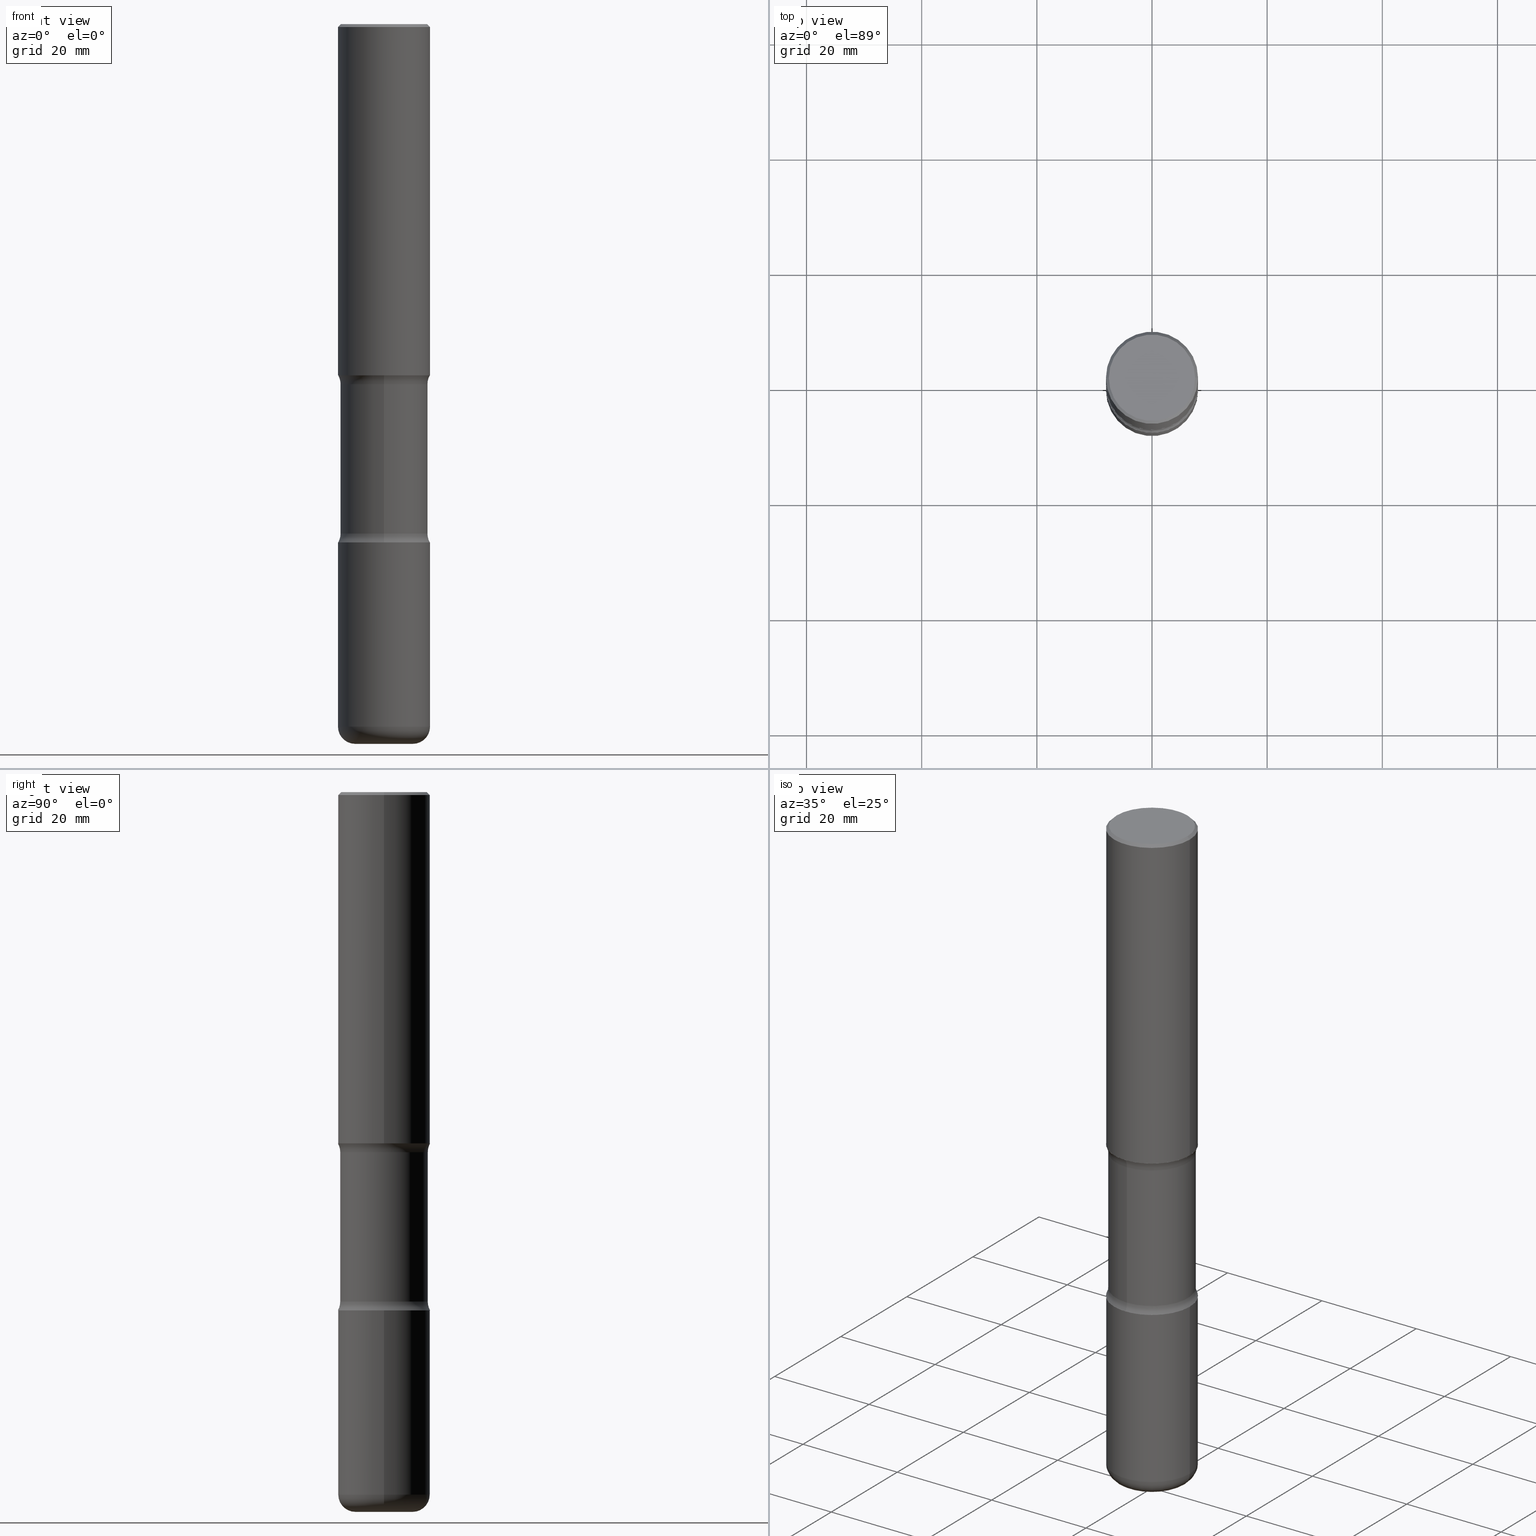
[diagram: canonical four-view strip — front | top / right | iso, engineering-drawing reading convention]
A machine part, canonical four-view strip (front | top / right | iso — engineering-drawing reading convention). The complete STEP part file that produces these views, byte-faithful:
ISO-10303-21;
HEADER;
FILE_DESCRIPTION (( 'STEP AP203' ),
    '1' );
FILE_NAME ('47732.STEP',
    '2024-03-02T08:06:10',
    ( '' ),
    ( '' ),
    'SwSTEP 2.0',
    'SolidWorks 2023',
    '' );
FILE_SCHEMA (( 'CONFIG_CONTROL_DESIGN' ));
ENDSEC;

DATA;
#1 = CONICAL_SURFACE ( 'NONE', #309, 0.3149499999999998967, 0.7853981633974460586 ) ;
#2 = ADVANCED_FACE ( 'NONE', ( #321 ), #33, .F. ) ;
#3 = ORGANIZATION ( 'UNSPECIFIED', 'UNSPECIFIED', '' ) ;
#4 = DIRECTION ( 'NONE',  ( -2.445468806185136597E-29, 3.491481338843145583E-15, 1.000000000000000000 ) ) ;
#5 = CARTESIAN_POINT ( 'NONE',  ( 4.890937612370289799E-31, -6.982962677686315028E-17, -0.02000000000000006981 ) ) ;
#6 = DIRECTION ( 'NONE',  ( 2.514961011121466101E-29, -3.391964546123647133E-15, -1.000000000000000000 ) ) ;
#7 = AXIS2_PLACEMENT_3D ( 'NONE', #23, #197, #163 ) ;
#8 = PLANE ( 'NONE',  #161 ) ;
#9 = AXIS2_PLACEMENT_3D ( 'NONE', #487, #443, #225 ) ;
#10 = ORIENTED_EDGE ( 'NONE', *, *, #477, .T. ) ;
#11 = EDGE_CURVE ( 'NONE', #453, #43, #58, .T. ) ;
#12 = FACE_OUTER_BOUND ( 'NONE', #85, .T. ) ;
#13 = ORIENTED_EDGE ( 'NONE', *, *, #358, .T. ) ;
#14 = EDGE_CURVE ( 'NONE', #118, #29, #360, .T. ) ;
#15 = AXIS2_PLACEMENT_3D ( 'NONE', #425, #517, #545 ) ;
#16 = CARTESIAN_POINT ( 'NONE',  ( 8.512269027981096619E-29, -1.216533539121887276E-14, -3.482559259964996379 ) ) ;
#17 = ORIENTED_EDGE ( 'NONE', *, *, #526, .T. ) ;
#18 = DIRECTION ( 'NONE',  ( 1.000000000000000000, -6.982962677686267499E-15, 4.876176775795936353E-29 ) ) ;
#19 = CARTESIAN_POINT ( 'NONE',  ( -0.3149499999999998967, 2.129454468560425784E-15, -0.02000000000000006981 ) ) ;
#20 = ORIENTED_EDGE ( 'NONE', *, *, #264, .F. ) ;
#21 = LOCAL_TIME ( 3, 6, 10.00000000000000000, #124 ) ;
#22 = EDGE_CURVE ( 'NONE', #176, #453, #101, .T. ) ;
#23 = CARTESIAN_POINT ( 'NONE',  ( 5.873037884934225470E-29, -8.385141583365698841E-15, -2.401600000000000623 ) ) ;
#24 =( NAMED_UNIT ( * ) SI_UNIT ( $, .STERADIAN. ) SOLID_ANGLE_UNIT ( ) );
#25 = DIRECTION ( 'NONE',  ( -2.445468806185136597E-29, 3.491481338843145583E-15, 1.000000000000000000 ) ) ;
#26 = CALENDAR_DATE ( 2024, 2, 3 ) ;
#27 = VERTEX_POINT ( 'NONE', #153 ) ;
#28 = DIRECTION ( 'NONE',  ( -2.445468806185136877E-29, 3.491481338843145188E-15, 1.000000000000000000 ) ) ;
#29 = VERTEX_POINT ( 'NONE', #444 ) ;
#30 = EDGE_CURVE ( 'NONE', #550, #204, #390, .T. ) ;
#31 = FACE_OUTER_BOUND ( 'NONE', #538, .T. ) ;
#32 = APPROVAL_DATE_TIME ( #288, #328 ) ;
#33 = TOROIDAL_SURFACE ( 'NONE', #402, 0.4242000000000001325, 0.1250000000000000555 ) ;
#34 = EDGE_LOOP ( 'NONE', ( #81, #556 ) ) ;
#35 = AXIS2_PLACEMENT_3D ( 'NONE', #57, #410, #189 ) ;
#36 = FACE_OUTER_BOUND ( 'NONE', #408, .T. ) ;
#37 = APPLICATION_PROTOCOL_DEFINITION ( 'international standard', 'config_control_design', 1994, #275 ) ;
#38 = ORIENTED_EDGE ( 'NONE', *, *, #323, .F. ) ;
#39 = CYLINDRICAL_SURFACE ( 'NONE', #478, 0.2992000000000000215 ) ;
#40 = PERSON_AND_ORGANIZATION ( #356, #3 ) ;
#41 = ORIENTED_EDGE ( 'NONE', *, *, #98, .T. ) ;
#42 = DIRECTION ( 'NONE',  ( 2.514961011121466661E-29, -3.391964546123647133E-15, -1.000000000000000000 ) ) ;
#43 = VERTEX_POINT ( 'NONE', #19 ) ;
#44 = ORIENTED_EDGE ( 'NONE', *, *, #534, .F. ) ;
#45 = CIRCLE ( 'NONE', #7, 0.3149500000000001743 ) ;
#46 = CIRCLE ( 'NONE', #548, 0.1181000000000000660 ) ;
#47 = DIRECTION ( 'NONE',  ( 1.000000000000000000, -6.982962677686263555E-15, 0.000000000000000000 ) ) ;
#48 = DIRECTION ( 'NONE',  ( 1.000000000000000000, -6.982962677686265922E-15, 0.000000000000000000 ) ) ;
#49 = APPLICATION_CONTEXT ( 'configuration controlled 3d designs of mechanical parts and assemblies' ) ;
#50 = LINE ( 'NONE', #216, #193 ) ;
#51 = CYLINDRICAL_SURFACE ( 'NONE', #265, 0.3149500000000000077 ) ;
#52 = AXIS2_PLACEMENT_3D ( 'NONE', #273, #107, #374 ) ;
#53 = DIRECTION ( 'NONE',  ( 2.438088387897960049E-29, -3.491481338843145188E-15, -1.000000000000000000 ) ) ;
#54 = LOCAL_TIME ( 3, 6, 10.00000000000000000, #509 ) ;
#55 = EDGE_CURVE ( 'NONE', #68, #336, #330, .T. ) ;
#56 = DIRECTION ( 'NONE',  ( 2.514961011121466661E-29, -3.391964546123646738E-15, -1.000000000000000000 ) ) ;
#57 = CARTESIAN_POINT ( 'NONE',  ( 1.174607576986844421E-28, -1.677028316673139137E-14, -4.803199999999998582 ) ) ;
#58 = CIRCLE ( 'NONE', #52, 0.3149499999999998967 ) ;
#59 = ORIENTED_EDGE ( 'NONE', *, *, #14, .F. ) ;
#60 = AXIS2_PLACEMENT_3D ( 'NONE', #504, #462, #242 ) ;
#61 = DIRECTION ( 'NONE',  ( -2.445468806185136597E-29, 3.491481338843145583E-15, 1.000000000000000000 ) ) ;
#62 = CARTESIAN_POINT ( 'NONE',  ( 5.926195507050082324E-29, -8.733809143388656122E-15, -2.462340740035005471 ) ) ;
#63 = EDGE_CURVE ( 'NONE', #417, #336, #368, .T. ) ;
#64 = CLOSED_SHELL ( 'NONE', ( #134, #519, #127, #2, #215, #388, #224, #92 ) ) ;
#65 = APPROVAL_DATE_TIME ( #279, #218 ) ;
#66 = CIRCLE ( 'NONE', #331, 0.3149500000000001743 ) ;
#67 = DIRECTION ( 'NONE',  ( 2.445468806185136597E-29, -3.491481338843145583E-15, -1.000000000000000000 ) ) ;
#68 = VERTEX_POINT ( 'NONE', #276 ) ;
#69 = EDGE_CURVE ( 'NONE', #463, #27, #546, .T. ) ;
#70 = CARTESIAN_POINT ( 'NONE',  ( 2.059624841783563274E-15, 0.2949499999999998789, -1.023409652156634744E-15 ) ) ;
#71 = EDGE_LOOP ( 'NONE', ( #119, #351, #202, #313 ) ) ;
#72 = DIRECTION ( 'NONE',  ( 1.000000000000000000, -6.982962677686267499E-15, 4.876176775795936353E-29 ) ) ;
#73 = ORIENTED_EDGE ( 'NONE', *, *, #98, .F. ) ;
#74 = FACE_OUTER_BOUND ( 'NONE', #248, .T. ) ;
#75 = SHAPE_DEFINITION_REPRESENTATION ( #307, #246 ) ;
#76 = ORIENTED_EDGE ( 'NONE', *, *, #113, .T. ) ;
#77 = CARTESIAN_POINT ( 'NONE',  ( 0.3149500000000003963, -2.199284095337292632E-15, 1.535751875536932092E-29 ) ) ;
#78 = AXIS2_PLACEMENT_3D ( 'NONE', #205, #67, #167 ) ;
#79 = ORIENTED_EDGE ( 'NONE', *, *, #371, .F. ) ;
#80 = DIRECTION ( 'NONE',  ( -2.445468806185136597E-29, 3.491481338843145583E-15, 1.000000000000000000 ) ) ;
#81 = ORIENTED_EDGE ( 'NONE', *, *, #286, .F. ) ;
#82 = PERSON_AND_ORGANIZATION ( #356, #3 ) ;
#83 = ORIENTED_EDGE ( 'NONE', *, *, #526, .F. ) ;
#84 = CARTESIAN_POINT ( 'NONE',  ( 2.962172767874574494E-15, 0.4241999999999914173, -2.462340740035007247 ) ) ;
#85 = EDGE_LOOP ( 'NONE', ( #465, #536 ) ) ;
#86 = CC_DESIGN_PERSON_AND_ORGANIZATION_ASSIGNMENT ( #290, #384, ( #415 ) ) ;
#87 = VERTEX_POINT ( 'NONE', #451 ) ;
#88 = DIRECTION ( 'NONE',  ( 2.514961011121466661E-29, -3.391964546123646738E-15, -1.000000000000000000 ) ) ;
#89 = VERTEX_POINT ( 'NONE', #488 ) ;
#90 = CIRCLE ( 'NONE', #203, 0.2992000000000000215 ) ;
#91 = DIRECTION ( 'NONE',  ( 6.860497997771530774E-15, 1.000000000000000000, 0.000000000000000000 ) ) ;
#92 = ADVANCED_FACE ( 'NONE', ( #249 ), #502, .T. ) ;
#93 = ORIENTED_EDGE ( 'NONE', *, *, #106, .F. ) ;
#94 = DIRECTION ( 'NONE',  ( 1.000000000000000000, -6.860497997771530774E-15, 4.842017608840796657E-29 ) ) ;
#95 = CIRCLE ( 'NONE', #411, 0.1968500000000004135 ) ;
#96 = DIRECTION ( 'NONE',  ( 6.982962677686265922E-15, 1.000000000000000000, -3.391964546123646344E-15 ) ) ;
#97 = LOCAL_TIME ( 3, 6, 10.00000000000000000, #232 ) ;
#98 = EDGE_CURVE ( 'NONE', #417, #204, #522, .T. ) ;
#99 = EDGE_LOOP ( 'NONE', ( #20, #122, #41, #172 ) ) ;
#100 = CARTESIAN_POINT ( 'NONE',  ( -0.3149500000000002853, -1.233297015105071824E-14, -3.543300000000000782 ) ) ;
#101 = LINE ( 'NONE', #228, #271 ) ;
#102 = DIRECTION ( 'NONE',  ( 6.982962677686265922E-15, 1.000000000000000000, -3.391964546123646344E-15 ) ) ;
#103 = CIRCLE ( 'NONE', #380, 0.2949499999999998789 ) ;
#104 = AXIS2_PLACEMENT_3D ( 'NONE', #185, #145, #102 ) ;
#105 = FACE_OUTER_BOUND ( 'NONE', #300, .T. ) ;
#106 = EDGE_CURVE ( 'NONE', #29, #68, #515, .T. ) ;
#107 = DIRECTION ( 'NONE',  ( -2.445468806185136597E-29, 3.491481338843145583E-15, 1.000000000000000000 ) ) ;
#108 = ORIENTED_EDGE ( 'NONE', *, *, #244, .F. ) ;
#109 = CALENDAR_DATE ( 2024, 2, 3 ) ;
#110 = DIRECTION ( 'NONE',  ( 6.860497997771530774E-15, 1.000000000000000000, 0.000000000000000000 ) ) ;
#111 = VERTEX_POINT ( 'NONE', #381 ) ;
#112 = TOROIDAL_SURFACE ( 'NONE', #159, 0.4242000000000001325, 0.1250000000000000555 ) ;
#113 = EDGE_CURVE ( 'NONE', #510, #176, #103, .T. ) ;
#114 = LINE ( 'NONE', #77, #539 ) ;
#115 = CIRCLE ( 'NONE', #354, 0.2949499999999998789 ) ;
#116 = DIRECTION ( 'NONE',  ( -2.445468806185136597E-29, 3.491481338843145583E-15, 1.000000000000000000 ) ) ;
#117 = PERSON_AND_ORGANIZATION ( #356, #3 ) ;
#118 = VERTEX_POINT ( 'NONE', #332 ) ;
#119 = ORIENTED_EDGE ( 'NONE', *, *, #426, .F. ) ;
#120 = DIRECTION ( 'NONE',  ( -6.982962677686267499E-15, -1.000000000000000000, 0.000000000000000000 ) ) ;
#121 = APPROVAL_DATE_TIME ( #544, #278 ) ;
#122 = ORIENTED_EDGE ( 'NONE', *, *, #358, .F. ) ;
#123 = DIRECTION ( 'NONE',  ( 1.000000000000000000, -6.982962677686273021E-15, 0.000000000000000000 ) ) ;
#124 = COORDINATED_UNIVERSAL_TIME_OFFSET ( 5, 0, .BEHIND. ) ;
#125 = ORIENTED_EDGE ( 'NONE', *, *, #106, .T. ) ;
#126 = CC_DESIGN_APPROVAL ( #278, ( #415 ) ) ;
#127 = ADVANCED_FACE ( 'NONE', ( #158 ), #112, .F. ) ;
#128 = CARTESIAN_POINT ( 'NONE',  ( -2.910223250654599532E-15, -0.4242000000000124005, -3.482559259964994158 ) ) ;
#129 = CC_DESIGN_SECURITY_CLASSIFICATION ( #346, ( #516 ) ) ;
#130 = ORIENTED_EDGE ( 'NONE', *, *, #11, .F. ) ;
#131 = EDGE_LOOP ( 'NONE', ( #471, #164 ) ) ;
#132 = FACE_OUTER_BOUND ( 'NONE', #166, .T. ) ;
#133 = EDGE_LOOP ( 'NONE', ( #143, #392 ) ) ;
#134 = ADVANCED_FACE ( 'NONE', ( #284 ), #39, .T. ) ;
#135 = AXIS2_PLACEMENT_3D ( 'NONE', #238, #416, #340 ) ;
#136 = FACE_OUTER_BOUND ( 'NONE', #382, .T. ) ;
#137 = DIRECTION ( 'NONE',  ( -2.445468806185136877E-29, 3.491481338843145188E-15, 1.000000000000000000 ) ) ;
#138 = MANIFOLD_SOLID_BREP ( 'Body-Move/Copy2[2]', #530 ) ;
#139 = DIRECTION ( 'NONE',  ( 1.000000000000000000, -6.982962677686266711E-15, 4.876176775795936353E-29 ) ) ;
#140 = DIRECTION ( 'NONE',  ( 6.982962677686265922E-15, 1.000000000000000000, -3.469564049740288825E-15 ) ) ;
#141 = AXIS2_PLACEMENT_3D ( 'NONE', #156, #456, #549 ) ;
#142 = AXIS2_PLACEMENT_3D ( 'NONE', #389, #219, #395 ) ;
#143 = ORIENTED_EDGE ( 'NONE', *, *, #14, .T. ) ;
#144 = PERSON_AND_ORGANIZATION ( #356, #3 ) ;
#145 = DIRECTION ( 'NONE',  ( 2.514961011121466661E-29, -3.391964546123646738E-15, -1.000000000000000000 ) ) ;
#146 = DIRECTION ( 'NONE',  ( -2.445468806185136597E-29, 3.491481338843145583E-15, 1.000000000000000000 ) ) ;
#147 = VERTEX_POINT ( 'NONE', #472 ) ;
#148 = LINE ( 'NONE', #316, #319 ) ;
#149 = EDGE_CURVE ( 'NONE', #87, #147, #45, .T. ) ;
#150 = AXIS2_PLACEMENT_3D ( 'NONE', #344, #6, #521 ) ;
#151 = CIRCLE ( 'NONE', #361, 0.3149500000000003963 ) ;
#152 = PERSON_AND_ORGANIZATION_ROLE ( 'design_supplier' ) ;
#153 = CARTESIAN_POINT ( 'NONE',  ( 0.3149500000000002853, -1.457064992326021168E-14, -3.543300000000000782 ) ) ;
#154 = PERSON_AND_ORGANIZATION ( #356, #3 ) ;
#155 = ADVANCED_FACE ( 'NONE', ( #378 ), #375, .T. ) ;
#156 = CARTESIAN_POINT ( 'NONE',  ( 5.018805843069069152E-28, 3.745488787305896227E-14, -4.921299999999999564 ) ) ;
#157 = CARTESIAN_POINT ( 'NONE',  ( -0.1968500000000004135, -1.537157979138763122E-14, -4.803199999999998582 ) ) ;
#158 = FACE_OUTER_BOUND ( 'NONE', #192, .T. ) ;
#159 = AXIS2_PLACEMENT_3D ( 'NONE', #464, #210, #297 ) ;
#160 = EDGE_LOOP ( 'NONE', ( #83, #431, #343, #44 ) ) ;
#161 = AXIS2_PLACEMENT_3D ( 'NONE', #475, #53, #182 ) ;
#162 = ORIENTED_EDGE ( 'NONE', *, *, #305, .T. ) ;
#163 = DIRECTION ( 'NONE',  ( 1.000000000000000000, -6.982962677686265922E-15, 0.000000000000000000 ) ) ;
#164 = ORIENTED_EDGE ( 'NONE', *, *, #30, .F. ) ;
#165 = PERSON_AND_ORGANIZATION_ROLE ( 'design_owner' ) ;
#166 = EDGE_LOOP ( 'NONE', ( #379, #532, #130, #474 ) ) ;
#167 = DIRECTION ( 'NONE',  ( -1.000000000000000000, 6.982962677686265922E-15, 0.000000000000000000 ) ) ;
#168 = CALENDAR_DATE ( 2024, 2, 3 ) ;
#169 = ADVANCED_FACE ( 'NONE', ( #74 ), #498, .F. ) ;
#170 = DIRECTION ( 'NONE',  ( -2.445468806185136597E-29, 3.491481338843145583E-15, 1.000000000000000000 ) ) ;
#171 = FACE_OUTER_BOUND ( 'NONE', #131, .T. ) ;
#172 = ORIENTED_EDGE ( 'NONE', *, *, #454, .T. ) ;
#173 = EDGE_LOOP ( 'NONE', ( #13, #162, #503, #420 ) ) ;
#174 = TOROIDAL_SURFACE ( 'NONE', #421, 0.1968500000000004135, 0.1181000000000000522 ) ;
#175 = CARTESIAN_POINT ( 'NONE',  ( 5.946459227533120264E-29, -8.704790342317601483E-15, -2.462340740035005471 ) ) ;
#176 = VERTEX_POINT ( 'NONE', #559 ) ;
#177 = DIRECTION ( 'NONE',  ( 1.000000000000000000, -6.982962677686273021E-15, 0.000000000000000000 ) ) ;
#178 = ADVANCED_FACE ( 'NONE', ( #31 ), #329, .T. ) ;
#179 = CARTESIAN_POINT ( 'NONE',  ( -2.052661000933121010E-15, -0.2992000000000170634, -4.921299999999999564 ) ) ;
#180 = AXIS2_PLACEMENT_3D ( 'NONE', #84, #200, #120 ) ;
#181 = AXIS2_PLACEMENT_3D ( 'NONE', #320, #466, #520 ) ;
#182 = DIRECTION ( 'NONE',  ( -1.000000000000000000, 6.982962677686265922E-15, -4.876176775795935793E-29 ) ) ;
#183 = CARTESIAN_POINT ( 'NONE',  ( 8.516490035935592115E-29, -1.215929066758317818E-14, -3.482559259964995935 ) ) ;
#184 = EDGE_CURVE ( 'NONE', #87, #43, #337, .T. ) ;
#185 = CARTESIAN_POINT ( 'NONE',  ( 8.516490035935592115E-29, -1.215929066758317818E-14, -3.482559259964995935 ) ) ;
#186 = AXIS2_PLACEMENT_3D ( 'NONE', #324, #234, #190 ) ;
#187 = AXIS2_PLACEMENT_3D ( 'NONE', #217, #365, #489 ) ;
#188 = DIRECTION ( 'NONE',  ( 6.982962677686265922E-15, 1.000000000000000000, -3.652203200085913145E-15 ) ) ;
#189 = DIRECTION ( 'NONE',  ( 1.000000000000000000, -6.982962677686265133E-15, 0.000000000000000000 ) ) ;
#190 = DIRECTION ( 'NONE',  ( 6.982962677686265922E-15, 1.000000000000000000, -3.469564049740288825E-15 ) ) ;
#191 = ADVANCED_FACE ( 'NONE', ( #36 ), #302, .T. ) ;
#192 = EDGE_LOOP ( 'NONE', ( #461, #339, #289, #73 ) ) ;
#193 = VECTOR ( 'NONE', #137, 39.37007874015748143 ) ;
#194 = DIRECTION ( 'NONE',  ( 6.982962677686265922E-15, 1.000000000000000000, -3.391964546123646738E-15 ) ) ;
#195 = LOCAL_TIME ( 3, 6, 10.00000000000000000, #541 ) ;
#196 = EDGE_CURVE ( 'NONE', #89, #547, #233, .T. ) ;
#197 = DIRECTION ( 'NONE',  ( -2.445468806185136597E-29, 3.491481338843145583E-15, 1.000000000000000000 ) ) ;
#198 = PERSON_AND_ORGANIZATION_ROLE ( 'creator' ) ;
#199 = ORIENTED_EDGE ( 'NONE', *, *, #511, .T. ) ;
#200 = DIRECTION ( 'NONE',  ( -1.000000000000000000, 6.982962677686265922E-15, -4.883557194083112340E-29 ) ) ;
#201 = VECTOR ( 'NONE', #362, 39.37007874015748143 ) ;
#202 = ORIENTED_EDGE ( 'NONE', *, *, #196, .T. ) ;
#203 = AXIS2_PLACEMENT_3D ( 'NONE', #16, #229, #495 ) ;
#204 = VERTEX_POINT ( 'NONE', #512 ) ;
#205 = CARTESIAN_POINT ( 'NONE',  ( 4.890937612370289799E-31, -6.982962677686315028E-17, -0.02000000000000006981 ) ) ;
#206 = EDGE_CURVE ( 'NONE', #208, #89, #372, .T. ) ;
#207 = APPROVAL_STATUS ( 'not_yet_approved' ) ;
#208 = VERTEX_POINT ( 'NONE', #386 ) ;
#209 = CYLINDRICAL_SURFACE ( 'NONE', #281, 0.3149500000000003963 ) ;
#210 = DIRECTION ( 'NONE',  ( 2.514961011121466661E-29, -3.391964546123646738E-15, -1.000000000000000000 ) ) ;
#211 = APPROVAL_ROLE ( '' ) ;
#212 = ORIENTED_EDGE ( 'NONE', *, *, #237, .T. ) ;
#213 = CARTESIAN_POINT ( 'NONE',  ( 1.174607576986844421E-28, -1.677028316673139137E-14, -4.803199999999998582 ) ) ;
#214 = ORIENTED_EDGE ( 'NONE', *, *, #196, .F. ) ;
#215 = ADVANCED_FACE ( 'NONE', ( #171 ), #469, .F. ) ;
#216 = CARTESIAN_POINT ( 'NONE',  ( -0.3149500000000003963, 2.237854346276438351E-15, -1.549218606675784638E-29 ) ) ;
#217 = CARTESIAN_POINT ( 'NONE',  ( 4.372705008681123089E-29, -1.851821897664530113E-14, -3.543300000000000338 ) ) ;
#218 = APPROVAL ( #513, 'UNSPECIFIED' ) ;
#219 = DIRECTION ( 'NONE',  ( -2.438088387897960049E-29, 3.491481338843145188E-15, 1.000000000000000000 ) ) ;
#220 = DIRECTION ( 'NONE',  ( 2.514961011121466661E-29, -3.391964546123646738E-15, -1.000000000000000000 ) ) ;
#221 = AXIS2_PLACEMENT_3D ( 'NONE', #183, #436, #96 ) ;
#222 = APPROVAL_PERSON_ORGANIZATION ( #154, #278, #552 ) ;
#223 = DIRECTION ( 'NONE',  ( 1.000000000000000000, -6.982962677686265133E-15, 4.883557194083112901E-29 ) ) ;
#224 = ADVANCED_FACE ( 'NONE', ( #481 ), #467, .F. ) ;
#225 = DIRECTION ( 'NONE',  ( -6.982962677686267499E-15, -1.000000000000000000, 0.000000000000000000 ) ) ;
#226 = TOROIDAL_SURFACE ( 'NONE', #412, 0.1968500000000004135, 0.1181000000000000522 ) ;
#227 = ADVANCED_FACE ( 'NONE', ( #132 ), #51, .T. ) ;
#228 = CARTESIAN_POINT ( 'NONE',  ( 0.3149499999999998967, -2.230543471175006266E-15, -0.02000000000000006981 ) ) ;
#229 = DIRECTION ( 'NONE',  ( 2.514961011121466661E-29, -3.391964546123646738E-15, -1.000000000000000000 ) ) ;
#230 = FACE_OUTER_BOUND ( 'NONE', #133, .T. ) ;
#231 = PRODUCT ( '47732', '47732', '', ( #335 ) ) ;
#232 = COORDINATED_UNIVERSAL_TIME_OFFSET ( 5, 0, .BEHIND. ) ;
#233 = CIRCLE ( 'NONE', #135, 0.1181000000000000660 ) ;
#234 = DIRECTION ( 'NONE',  ( 2.514961011121466661E-29, -3.391964546123646738E-15, -1.000000000000000000 ) ) ;
#235 = AXIS2_PLACEMENT_3D ( 'NONE', #350, #94, #91 ) ;
#236 = PERSON_AND_ORGANIZATION ( #356, #3 ) ;
#237 = EDGE_CURVE ( 'NONE', #111, #463, #50, .T. ) ;
#238 = CARTESIAN_POINT ( 'NONE',  ( 0.1968500000000004135, -1.814487936983393456E-14, -4.803199999999998582 ) ) ;
#239 = DIRECTION ( 'NONE',  ( 2.438088387897960049E-29, -3.491481338843145188E-15, -1.000000000000000000 ) ) ;
#240 = COORDINATED_UNIVERSAL_TIME_OFFSET ( 5, 0, .BEHIND. ) ;
#241 = ORIENTED_EDGE ( 'NONE', *, *, #511, .F. ) ;
#242 = DIRECTION ( 'NONE',  ( 1.000000000000000000, 0.000000000000000000, 0.000000000000000000 ) ) ;
#243 = ORIENTED_EDGE ( 'NONE', *, *, #113, .F. ) ;
#244 = EDGE_CURVE ( 'NONE', #89, #208, #95, .T. ) ;
#245 = DIRECTION ( 'NONE',  ( -1.000000000000000000, 6.982962677686265922E-15, -4.876176775795935793E-29 ) ) ;
#246 = ADVANCED_BREP_SHAPE_REPRESENTATION ( '47732', ( #501, #138, #529, #60 ), #399 ) ;
#247 = AXIS2_PLACEMENT_3D ( 'NONE', #494, #473, #441 ) ;
#248 = EDGE_LOOP ( 'NONE', ( #76, #17 ) ) ;
#249 = FACE_OUTER_BOUND ( 'NONE', #518, .T. ) ;
#250 = PRODUCT_RELATED_PRODUCT_CATEGORY ( 'detail', '', ( #231 ) ) ;
#251 = DATE_AND_TIME ( #168, #195 ) ;
#252 = ORIENTED_EDGE ( 'NONE', *, *, #305, .F. ) ;
#253 = DIRECTION ( 'NONE',  ( 1.000000000000000000, -6.860497997771530774E-15, 4.842017608840796657E-29 ) ) ;
#254 = PLANE ( 'NONE',  #187 ) ;
#255 = ORIENTED_EDGE ( 'NONE', *, *, #269, .T. ) ;
#256 = ADVANCED_FACE ( 'NONE', ( #523 ), #1, .T. ) ;
#257 = CARTESIAN_POINT ( 'NONE',  ( 8.665029620955796311E-29, -1.237136582792292023E-14, -3.543300000000000782 ) ) ;
#258 = AXIS2_PLACEMENT_3D ( 'NONE', #528, #146, #315 ) ;
#259 = TOROIDAL_SURFACE ( 'NONE', #104, 0.4242000000000002435, 0.1250000000000001943 ) ;
#260 = CARTESIAN_POINT ( 'NONE',  ( 0.3149500000000000077, -2.199284095337289871E-15, 1.535751875536930130E-29 ) ) ;
#261 = DIRECTION ( 'NONE',  ( -2.445468806185136597E-29, 3.491481338843145583E-15, 1.000000000000000000 ) ) ;
#262 = DIRECTION ( 'NONE',  ( -1.000000000000000000, 6.982962677686265922E-15, 0.000000000000000000 ) ) ;
#263 = CARTESIAN_POINT ( 'NONE',  ( 5.873037884934225470E-29, -8.385141583365698841E-15, -2.401600000000000623 ) ) ;
#264 = EDGE_CURVE ( 'NONE', #445, #550, #485, .T. ) ;
#265 = AXIS2_PLACEMENT_3D ( 'NONE', #301, #348, #139 ) ;
#266 = APPROVAL_PERSON_ORGANIZATION ( #40, #218, #211 ) ;
#267 = DESIGN_CONTEXT ( 'detailed design', #275, 'design' ) ;
#268 = CC_DESIGN_PERSON_AND_ORGANIZATION_ASSIGNMENT ( #236, #198, ( #516 ) ) ;
#269 = EDGE_CURVE ( 'NONE', #147, #453, #304, .T. ) ;
#270 = CARTESIAN_POINT ( 'NONE',  ( -3.131554243005659264E-46, 4.471029511141341874E-32, 1.280553747030123384E-17 ) ) ;
#271 = VECTOR ( 'NONE', #404, 39.37007874015748143 ) ;
#272 = CIRCLE ( 'NONE', #247, 0.2992000000000000215 ) ;
#273 = CARTESIAN_POINT ( 'NONE',  ( 4.890937612370289799E-31, -6.982962677686315028E-17, -0.02000000000000006981 ) ) ;
#274 = CYLINDRICAL_SURFACE ( 'NONE', #403, 0.3149500000000003963 ) ;
#275 = APPLICATION_CONTEXT ( 'configuration controlled 3d designs of mechanical parts and assemblies' ) ;
#276 = CARTESIAN_POINT ( 'NONE',  ( -2.106687422665607929E-15, -0.2992000000000121784, -3.482559259964995491 ) ) ;
#277 = ORIENTED_EDGE ( 'NONE', *, *, #184, .F. ) ;
#278 = APPROVAL ( #207, 'UNSPECIFIED' ) ;
#279 = DATE_AND_TIME ( #109, #21 ) ;
#280 = DIRECTION ( 'NONE',  ( 1.000000000000000000, -6.982962677686267499E-15, 4.876053491004736589E-29 ) ) ;
#281 = AXIS2_PLACEMENT_3D ( 'NONE', #296, #261, #18 ) ;
#282 = ORIENTED_EDGE ( 'NONE', *, *, #468, .F. ) ;
#283 = CARTESIAN_POINT ( 'NONE',  ( -2.160713844398088142E-15, -0.3149500000000088895, -2.401599999999999291 ) ) ;
#284 = FACE_OUTER_BOUND ( 'NONE', #173, .T. ) ;
#285 = ORIENTED_EDGE ( 'NONE', *, *, #55, .F. ) ;
#286 = EDGE_CURVE ( 'NONE', #147, #87, #66, .T. ) ;
#287 = CARTESIAN_POINT ( 'NONE',  ( -3.131554243005659264E-46, 4.471029511141341874E-32, 1.280553747030123384E-17 ) ) ;
#288 = DATE_AND_TIME ( #26, #414 ) ;
#289 = ORIENTED_EDGE ( 'NONE', *, *, #30, .T. ) ;
#290 = PERSON_AND_ORGANIZATION ( #356, #3 ) ;
#291 = ORIENTED_EDGE ( 'NONE', *, *, #69, .F. ) ;
#292 = CARTESIAN_POINT ( 'NONE',  ( 1.203488563587890921E-28, -1.718262711284876708E-14, -4.921299999999998676 ) ) ;
#293 = CIRCLE ( 'NONE', #434, 0.3149500000000002853 ) ;
#294 = CALENDAR_DATE ( 2024, 2, 3 ) ;
#295 = ORIENTED_EDGE ( 'NONE', *, *, #426, .T. ) ;
#296 = CARTESIAN_POINT ( 'NONE',  ( 0.000000000000000000, 0.000000000000000000, 0.000000000000000000 ) ) ;
#297 = DIRECTION ( 'NONE',  ( 6.982962677686265922E-15, 1.000000000000000000, -3.391964546123646738E-15 ) ) ;
#298 = ADVANCED_FACE ( 'NONE', ( #429 ), #308, .F. ) ;
#299 = CARTESIAN_POINT ( 'NONE',  ( 1.174607576986844421E-28, -1.677028316673139137E-14, -4.803199999999998582 ) ) ;
#300 = EDGE_LOOP ( 'NONE', ( #341, #212, #79, #508 ) ) ;
#301 = CARTESIAN_POINT ( 'NONE',  ( 0.000000000000000000, 0.000000000000000000, 0.000000000000000000 ) ) ;
#302 = CONICAL_SURFACE ( 'NONE', #78, 0.3149499999999998967, 0.7853981633974460586 ) ;
#303 = AXIS2_PLACEMENT_3D ( 'NONE', #175, #88, #400 ) ;
#304 = LINE ( 'NONE', #260, #493 ) ;
#305 = EDGE_CURVE ( 'NONE', #445, #68, #437, .T. ) ;
#306 = DIRECTION ( 'NONE',  ( 1.000000000000000000, -6.982962677686265133E-15, 4.883557194083112901E-29 ) ) ;
#307 = PRODUCT_DEFINITION_SHAPE ( 'NONE', 'NONE',  #415 ) ;
#308 = PLANE ( 'NONE',  #142 ) ;
#309 = AXIS2_PLACEMENT_3D ( 'NONE', #5, #479, #262 ) ;
#310 = CC_DESIGN_APPROVAL ( #218, ( #516 ) ) ;
#311 = UNCERTAINTY_MEASURE_WITH_UNIT (LENGTH_MEASURE( 1.000000000000000082E-05 ), #557, 'distance_accuracy_value', 'NONE');
#312 = ADVANCED_FACE ( 'NONE', ( #136 ), #174, .T. ) ;
#313 = ORIENTED_EDGE ( 'NONE', *, *, #377, .F. ) ;
#314 = DIRECTION ( 'NONE',  ( 2.514961011121466661E-29, -3.391964546123646738E-15, -1.000000000000000000 ) ) ;
#315 = DIRECTION ( 'NONE',  ( 1.000000000000000000, -6.982962677686263555E-15, 0.000000000000000000 ) ) ;
#316 = CARTESIAN_POINT ( 'NONE',  ( -0.3149499999999998967, 2.129454468560425784E-15, -0.02000000000000006981 ) ) ;
#317 = AXIS2_PLACEMENT_3D ( 'NONE', #70, #239, #245 ) ;
#318 = DIRECTION ( 'NONE',  ( -1.000000000000000000, 7.105427357601000281E-15, 0.000000000000000000 ) ) ;
#319 = VECTOR ( 'NONE', #492, 39.37007874015748143 ) ;
#320 = CARTESIAN_POINT ( 'NONE',  ( 1.174607576986844421E-28, -1.677028316673139137E-14, -4.803199999999998582 ) ) ;
#321 = FACE_OUTER_BOUND ( 'NONE', #99, .T. ) ;
#322 = CARTESIAN_POINT ( 'NONE',  ( 5.793698634558417209E-29, -8.498759905613550858E-15, -2.401600000000000623 ) ) ;
#323 = EDGE_CURVE ( 'NONE', #29, #118, #293, .T. ) ;
#324 = CARTESIAN_POINT ( 'NONE',  ( 5.793698634558417209E-29, -8.498759905613550858E-15, -2.401600000000000623 ) ) ;
#325 = DATE_AND_TIME ( #533, #97 ) ;
#326 =( NAMED_UNIT ( * ) PLANE_ANGLE_UNIT ( ) SI_UNIT ( $, .RADIAN. ) );
#327 = CARTESIAN_POINT ( 'NONE',  ( -2.106687422665635539E-15, -0.2992000000000087367, -2.462340740035004139 ) ) ;
#328 = APPROVAL ( #369, 'UNSPECIFIED' ) ;
#329 = PLANE ( 'NONE',  #141 ) ;
#330 = CIRCLE ( 'NONE', #499, 0.2992000000000000215 ) ;
#331 = AXIS2_PLACEMENT_3D ( 'NONE', #263, #483, #435 ) ;
#332 = CARTESIAN_POINT ( 'NONE',  ( 2.199284095337378223E-15, 0.3149499999999879063, -3.543300000000002115 ) ) ;
#333 = ORIENTED_EDGE ( 'NONE', *, *, #377, .T. ) ;
#334 = ADVANCED_FACE ( 'NONE', ( #12 ), #8, .F. ) ;
#335 = MECHANICAL_CONTEXT ( 'NONE', #49, 'mechanical' ) ;
#336 = VERTEX_POINT ( 'NONE', #355 ) ;
#337 = LINE ( 'NONE', #507, #345 ) ;
#338 =( LENGTH_UNIT ( ) NAMED_UNIT ( * ) SI_UNIT ( $, .METRE. ) );
#339 = ORIENTED_EDGE ( 'NONE', *, *, #264, .T. ) ;
#340 = DIRECTION ( 'NONE',  ( 1.000000000000000000, -6.982962677686269077E-15, 0.000000000000000000 ) ) ;
#341 = ORIENTED_EDGE ( 'NONE', *, *, #468, .T. ) ;
#342 = DATE_TIME_ROLE ( 'creation_date' ) ;
#343 = ORIENTED_EDGE ( 'NONE', *, *, #11, .T. ) ;
#344 = CARTESIAN_POINT ( 'NONE',  ( 5.873037884934225470E-29, -8.385141583365698841E-15, -2.401600000000000623 ) ) ;
#345 = VECTOR ( 'NONE', #422, 39.37007874015748143 ) ;
#346 = SECURITY_CLASSIFICATION ( '', '', #457 ) ;
#347 = ADVANCED_FACE ( 'NONE', ( #357 ), #226, .T. ) ;
#348 = DIRECTION ( 'NONE',  ( -2.445468806185136597E-29, 3.491481338843145583E-15, 1.000000000000000000 ) ) ;
#349 = ORIENTED_EDGE ( 'NONE', *, *, #55, .T. ) ;
#350 = CARTESIAN_POINT ( 'NONE',  ( -2.910223250654624775E-15, -0.4242000000000089033, -2.462340740035003694 ) ) ;
#351 = ORIENTED_EDGE ( 'NONE', *, *, #206, .T. ) ;
#352 = CARTESIAN_POINT ( 'NONE',  ( 8.665029620955796311E-29, -1.237136582792292023E-14, -3.543300000000000782 ) ) ;
#353 = AXIS2_PLACEMENT_3D ( 'NONE', #128, #253, #110 ) ;
#354 = AXIS2_PLACEMENT_3D ( 'NONE', #270, #446, #366 ) ;
#355 = CARTESIAN_POINT ( 'NONE',  ( 2.089302433163816004E-15, 0.2991999999999878646, -3.482559259964997711 ) ) ;
#356 = PERSON ( 'UNSPECIFIED', 'UNSPECIFIED', 'UNSPECIFIED', ('UNSPECIFIED'), ('UNSPECIFIED'), ('UNSPECIFIED') ) ;
#357 = FACE_OUTER_BOUND ( 'NONE', #71, .T. ) ;
#358 = EDGE_CURVE ( 'NONE', #417, #445, #480, .T. ) ;
#359 = DIRECTION ( 'NONE',  ( 6.982962677686265922E-15, 1.000000000000000000, -3.469564049740290009E-15 ) ) ;
#360 = CIRCLE ( 'NONE', #491, 0.3149500000000002853 ) ;
#361 = AXIS2_PLACEMENT_3D ( 'NONE', #322, #314, #140 ) ;
#362 = DIRECTION ( 'NONE',  ( 2.514961011121466661E-29, -3.391964546123647133E-15, -1.000000000000000000 ) ) ;
#363 = CARTESIAN_POINT ( 'NONE',  ( -0.2949499999999998789, 2.094539655171994924E-15, 1.280553747028670770E-17 ) ) ;
#364 = CARTESIAN_POINT ( 'NONE',  ( 8.512269027981096619E-29, -1.216533539121887276E-14, -3.482559259964996379 ) ) ;
#365 = DIRECTION ( 'NONE',  ( -2.514961011121466101E-29, 3.391964546123647133E-15, 1.000000000000000000 ) ) ;
#366 = DIRECTION ( 'NONE',  ( 1.000000000000000000, -6.982962677686267499E-15, 4.876053491004736589E-29 ) ) ;
#367 = PERSON_AND_ORGANIZATION_ROLE ( 'classification_officer' ) ;
#368 = LINE ( 'NONE', #452, #201 ) ;
#369 = APPROVAL_STATUS ( 'not_yet_approved' ) ;
#370 = CARTESIAN_POINT ( 'NONE',  ( 2.089302433163790366E-15, 0.2991999999999913062, -2.462340740035006359 ) ) ;
#371 = EDGE_CURVE ( 'NONE', #27, #463, #524, .T. ) ;
#372 = CIRCLE ( 'NONE', #398, 0.1968500000000004135 ) ;
#373 = DIRECTION ( 'NONE',  ( 7.105427357601001859E-15, 1.000000000000000000, -3.491481338843145583E-15 ) ) ;
#374 = DIRECTION ( 'NONE',  ( 1.000000000000000000, -6.982962677686265922E-15, 0.000000000000000000 ) ) ;
#375 = CYLINDRICAL_SURFACE ( 'NONE', #438, 0.3149500000000000077 ) ;
#376 = PERSON_AND_ORGANIZATION ( #356, #3 ) ;
#377 = EDGE_CURVE ( 'NONE', #111, #547, #486, .T. ) ;
#378 = FACE_OUTER_BOUND ( 'NONE', #458, .T. ) ;
#379 = ORIENTED_EDGE ( 'NONE', *, *, #286, .T. ) ;
#380 = AXIS2_PLACEMENT_3D ( 'NONE', #287, #116, #280 ) ;
#381 = CARTESIAN_POINT ( 'NONE',  ( -0.3149500000000005073, -1.453242882045495223E-14, -4.803199999999998582 ) ) ;
#382 = EDGE_LOOP ( 'NONE', ( #418, #295, #282, #214 ) ) ;
#383 = CARTESIAN_POINT ( 'NONE',  ( 0.000000000000000000, 0.000000000000000000, 0.000000000000000000 ) ) ;
#384 = PERSON_AND_ORGANIZATION_ROLE ( 'creator' ) ;
#385 = ORIENTED_EDGE ( 'NONE', *, *, #206, .F. ) ;
#386 = CARTESIAN_POINT ( 'NONE',  ( -0.1968500000000004135, -1.515817627897998273E-14, -4.921299999999998676 ) ) ;
#387 = EDGE_LOOP ( 'NONE', ( #93, #59, #199, #10 ) ) ;
#388 = ADVANCED_FACE ( 'NONE', ( #230 ), #254, .F. ) ;
#389 = CARTESIAN_POINT ( 'NONE',  ( 5.873037884934225470E-29, -8.385141583365698841E-15, -2.401600000000000623 ) ) ;
#390 = CIRCLE ( 'NONE', #186, 0.3149500000000003963 ) ;
#391 = AXIS2_PLACEMENT_3D ( 'NONE', #257, #432, #47 ) ;
#392 = ORIENTED_EDGE ( 'NONE', *, *, #323, .T. ) ;
#393 = DIRECTION ( 'NONE',  ( -2.445468806185136597E-29, 3.491481338843145583E-15, 1.000000000000000000 ) ) ;
#394 = DIMENSIONAL_EXPONENTS ( 1.000000000000000000, 0.000000000000000000, 0.000000000000000000, 0.000000000000000000, 0.000000000000000000, 0.000000000000000000, 0.000000000000000000 ) ;
#395 = DIRECTION ( 'NONE',  ( 1.000000000000000000, -6.982962677686265922E-15, 4.876176775795935793E-29 ) ) ;
#396 = EDGE_CURVE ( 'NONE', #43, #453, #500, .T. ) ;
#397 = DIRECTION ( 'NONE',  ( 6.982962677686265922E-15, 1.000000000000000000, -3.469564049740290009E-15 ) ) ;
#398 = AXIS2_PLACEMENT_3D ( 'NONE', #292, #25, #123 ) ;
#399 =( GEOMETRIC_REPRESENTATION_CONTEXT ( 3 ) GLOBAL_UNCERTAINTY_ASSIGNED_CONTEXT ( ( #311 ) ) GLOBAL_UNIT_ASSIGNED_CONTEXT ( ( #557, #326, #24 ) ) REPRESENTATION_CONTEXT ( 'NONE', 'WORKASPACE' ) );
#400 = DIRECTION ( 'NONE',  ( 6.982962677686265922E-15, 1.000000000000000000, -3.652203200085913145E-15 ) ) ;
#401 = CC_DESIGN_DATE_AND_TIME_ASSIGNMENT ( #325, #497, ( #346 ) ) ;
#402 = AXIS2_PLACEMENT_3D ( 'NONE', #62, #496, #194 ) ;
#403 = AXIS2_PLACEMENT_3D ( 'NONE', #450, #61, #72 ) ;
#404 = DIRECTION ( 'NONE',  ( 0.7071067811865459074, -7.319954787623249734E-15, -0.7071067811865491270 ) ) ;
#405 = ORIENTED_EDGE ( 'NONE', *, *, #63, .T. ) ;
#406 = EDGE_CURVE ( 'NONE', #445, #417, #272, .T. ) ;
#407 = ORIENTED_EDGE ( 'NONE', *, *, #406, .T. ) ;
#408 = EDGE_LOOP ( 'NONE', ( #553, #243, #476, #505 ) ) ;
#409 = CC_DESIGN_PERSON_AND_ORGANIZATION_ASSIGNMENT ( #117, #367, ( #346 ) ) ;
#410 = DIRECTION ( 'NONE',  ( -2.445468806185136597E-29, 3.491481338843145583E-15, 1.000000000000000000 ) ) ;
#411 = AXIS2_PLACEMENT_3D ( 'NONE', #482, #393, #177 ) ;
#412 = AXIS2_PLACEMENT_3D ( 'NONE', #299, #525, #223 ) ;
#413 = ORIENTED_EDGE ( 'NONE', *, *, #396, .F. ) ;
#414 = LOCAL_TIME ( 3, 6, 10.00000000000000000, #240 ) ;
#415 = PRODUCT_DEFINITION ( 'UNKNOWN', '', #516, #267 ) ;
#416 = DIRECTION ( 'NONE',  ( -6.982962677686266711E-15, -1.000000000000000000, 3.491481338843145583E-15 ) ) ;
#417 = VERTEX_POINT ( 'NONE', #370 ) ;
#418 = ORIENTED_EDGE ( 'NONE', *, *, #244, .T. ) ;
#419 = CARTESIAN_POINT ( 'NONE',  ( 1.213064589428117588E-28, -1.704549297248130466E-14, -4.921300000000000452 ) ) ;
#420 = ORIENTED_EDGE ( 'NONE', *, *, #63, .F. ) ;
#421 = AXIS2_PLACEMENT_3D ( 'NONE', #213, #4, #306 ) ;
#422 = DIRECTION ( 'NONE',  ( -2.445468806185136877E-29, 3.491481338843145188E-15, 1.000000000000000000 ) ) ;
#423 = APPLICATION_PROTOCOL_DEFINITION ( 'international standard', 'config_control_design', 1994, #49 ) ;
#424 = ORIENTED_EDGE ( 'NONE', *, *, #551, .T. ) ;
#425 = CARTESIAN_POINT ( 'NONE',  ( 1.213064589428117588E-28, -1.704549297248130466E-14, -4.921300000000000452 ) ) ;
#426 = EDGE_CURVE ( 'NONE', #208, #111, #46, .T. ) ;
#427 = CARTESIAN_POINT ( 'NONE',  ( 0.3149500000000005073, -1.896956726206868282E-14, -4.803199999999998582 ) ) ;
#428 = EDGE_LOOP ( 'NONE', ( #560, #333, #424, #291 ) ) ;
#429 = FACE_OUTER_BOUND ( 'NONE', #34, .T. ) ;
#430 = CC_DESIGN_PERSON_AND_ORGANIZATION_ASSIGNMENT ( #376, #152, ( #516 ) ) ;
#431 = ORIENTED_EDGE ( 'NONE', *, *, #22, .T. ) ;
#432 = DIRECTION ( 'NONE',  ( -2.445468806185136597E-29, 3.491481338843145583E-15, 1.000000000000000000 ) ) ;
#433 = CLOSED_SHELL ( 'NONE', ( #542, #312, #178, #347, #448, #334 ) ) ;
#434 = AXIS2_PLACEMENT_3D ( 'NONE', #352, #220, #397 ) ;
#435 = DIRECTION ( 'NONE',  ( 1.000000000000000000, -6.982962677686265922E-15, 0.000000000000000000 ) ) ;
#436 = DIRECTION ( 'NONE',  ( 2.514961011121466661E-29, -3.391964546123646738E-15, -1.000000000000000000 ) ) ;
#437 = LINE ( 'NONE', #179, #531 ) ;
#438 = AXIS2_PLACEMENT_3D ( 'NONE', #383, #80, #543 ) ;
#439 = CIRCLE ( 'NONE', #9, 0.1250000000000001943 ) ;
#440 = APPROVAL_PERSON_ORGANIZATION ( #144, #328, #555 ) ;
#441 = DIRECTION ( 'NONE',  ( 6.982962677686265922E-15, 1.000000000000000000, -3.652203200085913145E-15 ) ) ;
#442 = CC_DESIGN_DATE_AND_TIME_ASSIGNMENT ( #251, #342, ( #415 ) ) ;
#443 = DIRECTION ( 'NONE',  ( -1.000000000000000000, 6.982962677686265922E-15, -4.883557194083112340E-29 ) ) ;
#444 = CARTESIAN_POINT ( 'NONE',  ( -2.160713844398058954E-15, -0.3149500000000126643, -3.543299999999999894 ) ) ;
#445 = VERTEX_POINT ( 'NONE', #327 ) ;
#446 = DIRECTION ( 'NONE',  ( -2.445468806185136597E-29, 3.491481338843145583E-15, 1.000000000000000000 ) ) ;
#447 = CIRCLE ( 'NONE', #35, 0.3149500000000005073 ) ;
#448 = ADVANCED_FACE ( 'NONE', ( #506 ), #209, .T. ) ;
#449 = DIRECTION ( 'NONE',  ( 2.514961011121466661E-29, -3.391964546123646738E-15, -1.000000000000000000 ) ) ;
#450 = CARTESIAN_POINT ( 'NONE',  ( 0.000000000000000000, 0.000000000000000000, 0.000000000000000000 ) ) ;
#451 = CARTESIAN_POINT ( 'NONE',  ( -0.3149500000000001743, -1.989631258794842718E-15, -2.401600000000000623 ) ) ;
#452 = CARTESIAN_POINT ( 'NONE',  ( 2.089302433163852292E-15, 0.2991999999999829796, -4.921300000000002228 ) ) ;
#453 = VERTEX_POINT ( 'NONE', #537 ) ;
#454 = EDGE_CURVE ( 'NONE', #204, #550, #151, .T. ) ;
#455 = AXIS2_PLACEMENT_3D ( 'NONE', #490, #170, #48 ) ;
#456 = DIRECTION ( 'NONE',  ( 2.438088387897960049E-29, -3.491481338843145188E-15, -1.000000000000000000 ) ) ;
#457 = SECURITY_CLASSIFICATION_LEVEL ( 'unclassified' ) ;
#458 = EDGE_LOOP ( 'NONE', ( #277, #514, #255, #413 ) ) ;
#459 = LENGTH_MEASURE_WITH_UNIT ( LENGTH_MEASURE( 0.02539999999999999897 ), #338 );
#460 = DIRECTION ( 'NONE',  ( 2.514961011121466661E-29, -3.391964546123646738E-15, -1.000000000000000000 ) ) ;
#461 = ORIENTED_EDGE ( 'NONE', *, *, #406, .F. ) ;
#462 = DIRECTION ( 'NONE',  ( 0.000000000000000000, 0.000000000000000000, 1.000000000000000000 ) ) ;
#463 = VERTEX_POINT ( 'NONE', #100 ) ;
#464 = CARTESIAN_POINT ( 'NONE',  ( 5.926195507050082324E-29, -8.733809143388656122E-15, -2.462340740035005471 ) ) ;
#465 = ORIENTED_EDGE ( 'NONE', *, *, #371, .T. ) ;
#466 = DIRECTION ( 'NONE',  ( -2.445468806185136597E-29, 3.491481338843145583E-15, 1.000000000000000000 ) ) ;
#467 = TOROIDAL_SURFACE ( 'NONE', #221, 0.4242000000000002435, 0.1250000000000001943 ) ;
#468 = EDGE_CURVE ( 'NONE', #547, #111, #447, .T. ) ;
#469 = PLANE ( 'NONE',  #150 ) ;
#470 = CC_DESIGN_APPROVAL ( #328, ( #346 ) ) ;
#471 = ORIENTED_EDGE ( 'NONE', *, *, #454, .F. ) ;
#472 = CARTESIAN_POINT ( 'NONE',  ( 0.3149500000000001743, -1.058442567870299029E-14, -2.401600000000000623 ) ) ;
#473 = DIRECTION ( 'NONE',  ( 2.514961011121466661E-29, -3.391964546123646738E-15, -1.000000000000000000 ) ) ;
#474 = ORIENTED_EDGE ( 'NONE', *, *, #269, .F. ) ;
#475 = CARTESIAN_POINT ( 'NONE',  ( 4.372705008681123089E-29, -1.851821897664530113E-14, -3.543300000000000338 ) ) ;
#476 = ORIENTED_EDGE ( 'NONE', *, *, #534, .T. ) ;
#477 = EDGE_CURVE ( 'NONE', #336, #68, #90, .T. ) ;
#478 = AXIS2_PLACEMENT_3D ( 'NONE', #419, #460, #554 ) ;
#479 = DIRECTION ( 'NONE',  ( 2.445468806185136597E-29, -3.491481338843145583E-15, -1.000000000000000000 ) ) ;
#480 = CIRCLE ( 'NONE', #303, 0.2992000000000000215 ) ;
#481 = FACE_OUTER_BOUND ( 'NONE', #387, .T. ) ;
#482 = CARTESIAN_POINT ( 'NONE',  ( 1.203488563587890921E-28, -1.718262711284876708E-14, -4.921299999999998676 ) ) ;
#483 = DIRECTION ( 'NONE',  ( -2.445468806185136597E-29, 3.491481338843145583E-15, 1.000000000000000000 ) ) ;
#484 = CC_DESIGN_PERSON_AND_ORGANIZATION_ASSIGNMENT ( #82, #165, ( #231 ) ) ;
#485 = CIRCLE ( 'NONE', #235, 0.1250000000000000555 ) ;
#486 = CIRCLE ( 'NONE', #181, 0.3149500000000005073 ) ;
#487 = CARTESIAN_POINT ( 'NONE',  ( 2.962172767874600526E-15, 0.4241999999999880866, -3.482559259964997711 ) ) ;
#488 = CARTESIAN_POINT ( 'NONE',  ( 0.1968500000000004135, -1.855722331595131342E-14, -4.921299999999998676 ) ) ;
#489 = DIRECTION ( 'NONE',  ( -6.982962677686265922E-15, -1.000000000000000000, 3.391964546123647133E-15 ) ) ;
#490 = CARTESIAN_POINT ( 'NONE',  ( 4.890937612370289799E-31, -6.982962677686315028E-17, -0.02000000000000006981 ) ) ;
#491 = AXIS2_PLACEMENT_3D ( 'NONE', #540, #449, #359 ) ;
#492 = DIRECTION ( 'NONE',  ( -0.7071067811865459074, 2.468850131082240100E-15, -0.7071067811865491270 ) ) ;
#493 = VECTOR ( 'NONE', #527, 39.37007874015748143 ) ;
#494 = CARTESIAN_POINT ( 'NONE',  ( 5.946459227533120264E-29, -8.704790342317601483E-15, -2.462340740035005471 ) ) ;
#495 = DIRECTION ( 'NONE',  ( 6.982962677686265922E-15, 1.000000000000000000, -3.652203200085913145E-15 ) ) ;
#496 = DIRECTION ( 'NONE',  ( 2.514961011121466661E-29, -3.391964546123646738E-15, -1.000000000000000000 ) ) ;
#497 = DATE_TIME_ROLE ( 'classification_date' ) ;
#498 = PLANE ( 'NONE',  #317 ) ;
#499 = AXIS2_PLACEMENT_3D ( 'NONE', #364, #56, #188 ) ;
#500 = CIRCLE ( 'NONE', #455, 0.3149499999999998967 ) ;
#501 = MANIFOLD_SOLID_BREP ( 'Body-Move/Copy2[1]', #433 ) ;
#502 = CYLINDRICAL_SURFACE ( 'NONE', #15, 0.2992000000000000215 ) ;
#503 = ORIENTED_EDGE ( 'NONE', *, *, #477, .F. ) ;
#504 = CARTESIAN_POINT ( 'NONE',  ( 0.000000000000000000, 0.000000000000000000, 0.000000000000000000 ) ) ;
#505 = ORIENTED_EDGE ( 'NONE', *, *, #396, .T. ) ;
#506 = FACE_OUTER_BOUND ( 'NONE', #428, .T. ) ;
#507 = CARTESIAN_POINT ( 'NONE',  ( -0.3149500000000000077, 2.237854346276435590E-15, -1.549218606675782676E-29 ) ) ;
#508 = ORIENTED_EDGE ( 'NONE', *, *, #551, .F. ) ;
#509 = COORDINATED_UNIVERSAL_TIME_OFFSET ( 5, 0, .BEHIND. ) ;
#510 = VERTEX_POINT ( 'NONE', #363 ) ;
#511 = EDGE_CURVE ( 'NONE', #118, #336, #439, .T. ) ;
#512 = CARTESIAN_POINT ( 'NONE',  ( 2.199284095337349824E-15, 0.3149499999999919031, -2.401600000000001511 ) ) ;
#513 = APPROVAL_STATUS ( 'not_yet_approved' ) ;
#514 = ORIENTED_EDGE ( 'NONE', *, *, #149, .T. ) ;
#515 = CIRCLE ( 'NONE', #353, 0.1250000000000001943 ) ;
#516 = PRODUCT_DEFINITION_FORMATION_WITH_SPECIFIED_SOURCE ( 'ANY', '', #231, .NOT_KNOWN. ) ;
#517 = DIRECTION ( 'NONE',  ( 2.514961011121466661E-29, -3.391964546123646738E-15, -1.000000000000000000 ) ) ;
#518 = EDGE_LOOP ( 'NONE', ( #252, #407, #405, #285 ) ) ;
#519 = ADVANCED_FACE ( 'NONE', ( #535 ), #259, .F. ) ;
#520 = DIRECTION ( 'NONE',  ( 1.000000000000000000, -6.982962677686265133E-15, 0.000000000000000000 ) ) ;
#521 = DIRECTION ( 'NONE',  ( 6.982962677686265922E-15, 1.000000000000000000, -3.391964546123647133E-15 ) ) ;
#522 = CIRCLE ( 'NONE', #180, 0.1250000000000000555 ) ;
#523 = FACE_OUTER_BOUND ( 'NONE', #160, .T. ) ;
#524 = CIRCLE ( 'NONE', #391, 0.3149500000000002853 ) ;
#525 = DIRECTION ( 'NONE',  ( -2.445468806185136597E-29, 3.491481338843145583E-15, 1.000000000000000000 ) ) ;
#526 = EDGE_CURVE ( 'NONE', #176, #510, #115, .T. ) ;
#527 = DIRECTION ( 'NONE',  ( -2.445468806185136877E-29, 3.491481338843145188E-15, 1.000000000000000000 ) ) ;
#528 = CARTESIAN_POINT ( 'NONE',  ( 8.665029620955796311E-29, -1.237136582792292023E-14, -3.543300000000000782 ) ) ;
#529 = MANIFOLD_SOLID_BREP ( 'Body-Move/Copy2[4]', #64 ) ;
#530 = CLOSED_SHELL ( 'NONE', ( #227, #256, #191, #169, #298, #155 ) ) ;
#531 = VECTOR ( 'NONE', #42, 39.37007874015748143 ) ;
#532 = ORIENTED_EDGE ( 'NONE', *, *, #184, .T. ) ;
#533 = CALENDAR_DATE ( 2024, 2, 3 ) ;
#534 = EDGE_CURVE ( 'NONE', #510, #43, #148, .T. ) ;
#535 = FACE_OUTER_BOUND ( 'NONE', #558, .T. ) ;
#536 = ORIENTED_EDGE ( 'NONE', *, *, #69, .T. ) ;
#537 = CARTESIAN_POINT ( 'NONE',  ( 0.3149499999999998967, -2.230543471175006266E-15, -0.02000000000000006981 ) ) ;
#538 = EDGE_LOOP ( 'NONE', ( #108, #385 ) ) ;
#539 = VECTOR ( 'NONE', #28, 39.37007874015748143 ) ;
#540 = CARTESIAN_POINT ( 'NONE',  ( 8.665029620955796311E-29, -1.237136582792292023E-14, -3.543300000000000782 ) ) ;
#541 = COORDINATED_UNIVERSAL_TIME_OFFSET ( 5, 0, .BEHIND. ) ;
#542 = ADVANCED_FACE ( 'NONE', ( #105 ), #274, .T. ) ;
#543 = DIRECTION ( 'NONE',  ( 1.000000000000000000, -6.982962677686266711E-15, 4.876176775795936353E-29 ) ) ;
#544 = DATE_AND_TIME ( #294, #54 ) ;
#545 = DIRECTION ( 'NONE',  ( 6.982962677686265922E-15, 1.000000000000000000, -3.652203200085913145E-15 ) ) ;
#546 = CIRCLE ( 'NONE', #258, 0.3149500000000002853 ) ;
#547 = VERTEX_POINT ( 'NONE', #427 ) ;
#548 = AXIS2_PLACEMENT_3D ( 'NONE', #157, #373, #318 ) ;
#549 = DIRECTION ( 'NONE',  ( -1.000000000000000000, 6.982962677686265922E-15, -4.876176775795935793E-29 ) ) ;
#550 = VERTEX_POINT ( 'NONE', #283 ) ;
#551 = EDGE_CURVE ( 'NONE', #547, #27, #114, .T. ) ;
#552 = APPROVAL_ROLE ( '' ) ;
#553 = ORIENTED_EDGE ( 'NONE', *, *, #22, .F. ) ;
#554 = DIRECTION ( 'NONE',  ( 6.982962677686265922E-15, 1.000000000000000000, -3.652203200085913145E-15 ) ) ;
#555 = APPROVAL_ROLE ( '' ) ;
#556 = ORIENTED_EDGE ( 'NONE', *, *, #149, .F. ) ;
#557 =( CONVERSION_BASED_UNIT ( 'INCH', #459 ) LENGTH_UNIT ( ) NAMED_UNIT ( #394 ) );
#558 = EDGE_LOOP ( 'NONE', ( #38, #125, #349, #241 ) ) ;
#559 = CARTESIAN_POINT ( 'NONE',  ( 0.2949499999999998789, -2.127023677808859286E-15, 1.280553747031587399E-17 ) ) ;
#560 = ORIENTED_EDGE ( 'NONE', *, *, #237, .F. ) ;
ENDSEC;
END-ISO-10303-21;
